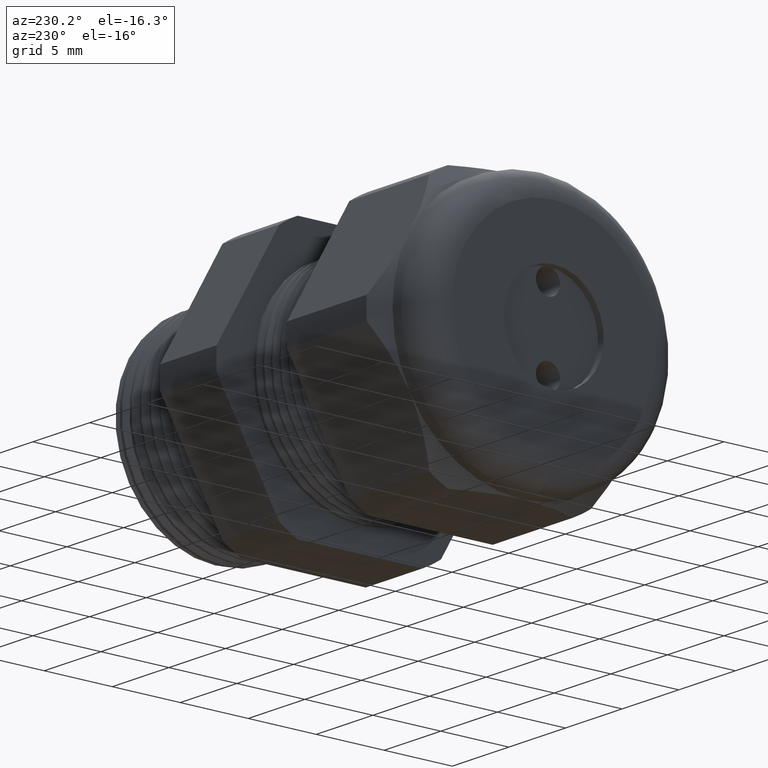
[diagram: clean part render]
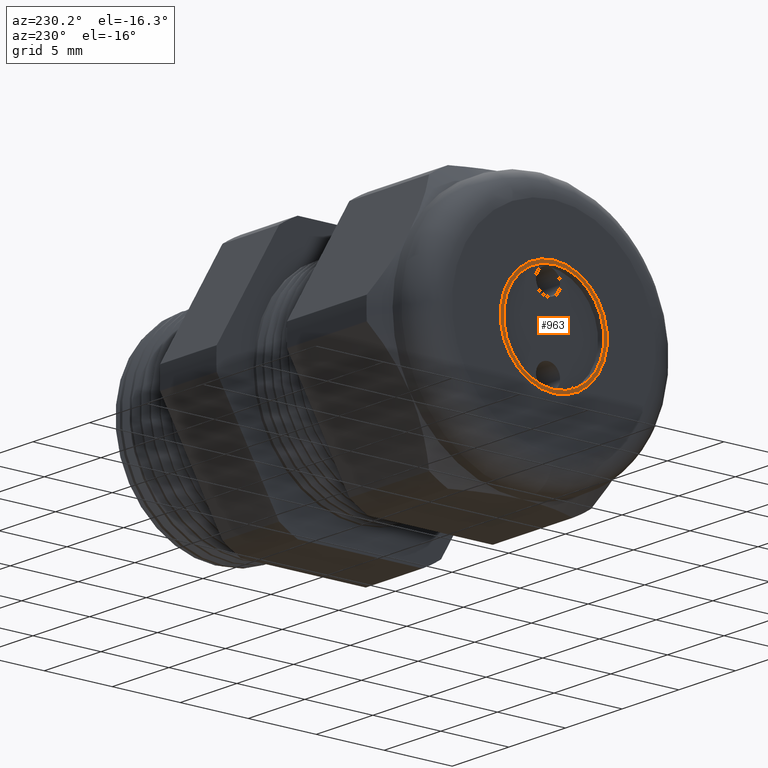
[diagram: same view with one face highlighted and labeled with its STEP entity id]
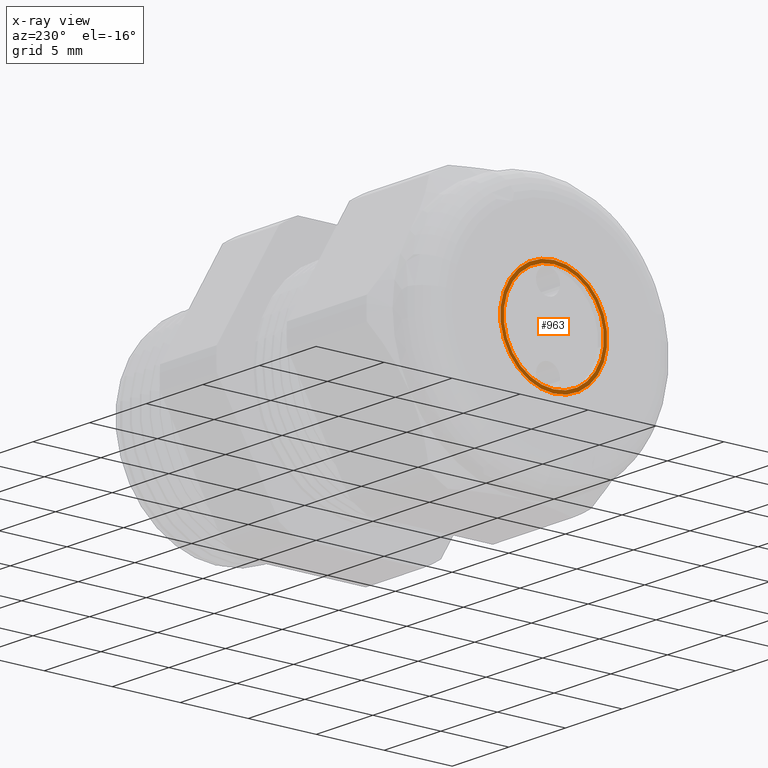
[diagram: x-ray of the same camera — body ghosted, the highlighted face saturated]
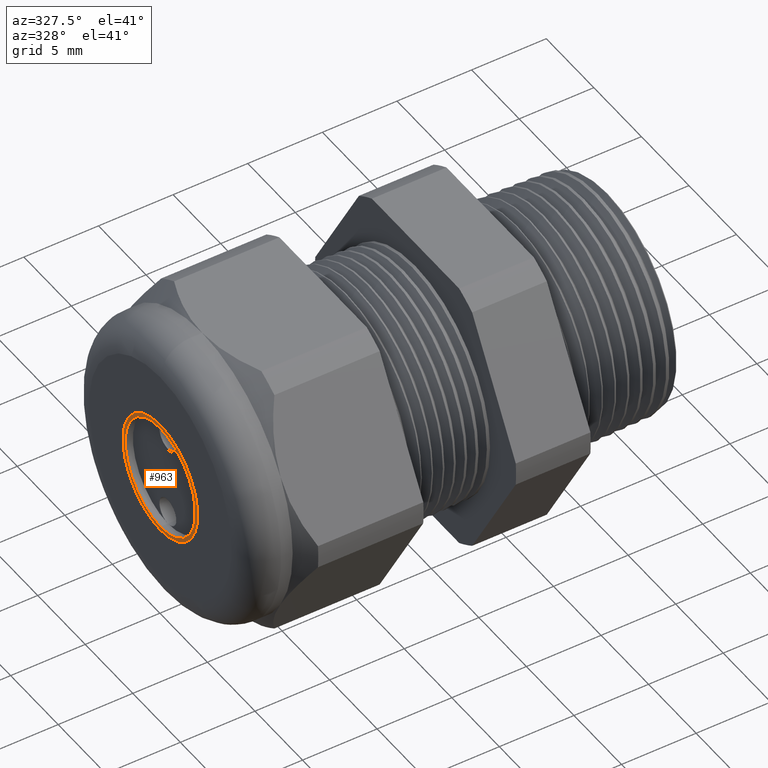
[diagram: same view with one face highlighted and labeled with its STEP entity id]
A machine part, auxiliary view. The second image highlights one B-rep face of the part: STEP entity #963.
The next image is the same camera in x-ray: the body ghosted, the highlighted face saturated — about 0% of this face is hidden behind the body in this view.
A second angle (auxiliary view) of the same face is appended — the face is thin or edge-on in the first view.
In plain terms, the highlighted planar face has unit normal (-1, 0, 0).
Its self-contained STEP definition (entity closure, byte-faithful):
#848 = EDGE_CURVE ( 'NONE', #862, #860, #2740, .T. ) ;
#860 = VERTEX_POINT ( 'NONE', #2769 ) ;
#862 = VERTEX_POINT ( 'NONE', #2768 ) ;
#901 = VERTEX_POINT ( 'NONE', #2881 ) ;
#904 = EDGE_CURVE ( 'NONE', #901, #910, #2876, .T. ) ;
#908 = EDGE_CURVE ( 'NONE', #910, #901, #2871, .T. ) ;
#910 = VERTEX_POINT ( 'NONE', #2866 ) ;
#949 = EDGE_CURVE ( 'NONE', #860, #862, #2931, .T. ) ;
#950 = ORIENTED_EDGE ( 'NONE', *, *, #904, .T. ) ;
#951 = ORIENTED_EDGE ( 'NONE', *, *, #848, .F. ) ;
#955 = ORIENTED_EDGE ( 'NONE', *, *, #949, .F. ) ;
#958 = EDGE_LOOP ( 'NONE', ( #950, #962 ) ) ;
#961 = EDGE_LOOP ( 'NONE', ( #955, #951 ) ) ;
#962 = ORIENTED_EDGE ( 'NONE', *, *, #908, .T. ) ;
#963 = ADVANCED_FACE ( 'NONE', ( #2980, #2979 ), #2978, .T. ) ;
#2732 = DIRECTION ( 'NONE',  ( 0.0000000000000000000, 0.0000000000000000000, 1.000000000000000000 ) ) ;
#2733 = DIRECTION ( 'NONE',  ( -1.000000000000000000, 0.0000000000000000000, 0.0000000000000000000 ) ) ;
#2734 = CARTESIAN_POINT ( 'NONE',  ( -1.179999999999999900, 0.0000000000000000000, 0.0000000000000000000 ) ) ;
#2735 = AXIS2_PLACEMENT_3D ( 'NONE', #2734, #2733, #2732 ) ;
#2740 = CIRCLE ( 'NONE', #2735, 0.1449999999999999900 ) ;
#2768 = CARTESIAN_POINT ( 'NONE',  ( -1.179999999999999900, 1.775737858763661900E-017, -0.1449999999999999900 ) ) ;
#2769 = CARTESIAN_POINT ( 'NONE',  ( -1.179999999999999900, 0.0000000000000000000, 0.1449999999999999900 ) ) ;
#2866 = CARTESIAN_POINT ( 'NONE',  ( -1.179999999999999900, 1.898202538678397000E-017, -0.1550000000000000000 ) ) ;
#2867 = DIRECTION ( 'NONE',  ( 0.0000000000000000000, 0.0000000000000000000, 1.000000000000000000 ) ) ;
#2868 = DIRECTION ( 'NONE',  ( -1.000000000000000000, 0.0000000000000000000, 0.0000000000000000000 ) ) ;
#2869 = CARTESIAN_POINT ( 'NONE',  ( -1.179999999999999900, 0.0000000000000000000, 0.0000000000000000000 ) ) ;
#2870 = AXIS2_PLACEMENT_3D ( 'NONE', #2869, #2868, #2867 ) ;
#2871 = CIRCLE ( 'NONE', #2870, 0.1550000000000000000 ) ;
#2872 = DIRECTION ( 'NONE',  ( 0.0000000000000000000, 0.0000000000000000000, 1.000000000000000000 ) ) ;
#2873 = DIRECTION ( 'NONE',  ( -1.000000000000000000, 0.0000000000000000000, 0.0000000000000000000 ) ) ;
#2874 = CARTESIAN_POINT ( 'NONE',  ( -1.179999999999999900, 0.0000000000000000000, 0.0000000000000000000 ) ) ;
#2875 = AXIS2_PLACEMENT_3D ( 'NONE', #2874, #2873, #2872 ) ;
#2876 = CIRCLE ( 'NONE', #2875, 0.1550000000000000000 ) ;
#2881 = CARTESIAN_POINT ( 'NONE',  ( -1.179999999999999900, 0.0000000000000000000, 0.1550000000000000000 ) ) ;
#2927 = DIRECTION ( 'NONE',  ( 0.0000000000000000000, 0.0000000000000000000, 1.000000000000000000 ) ) ;
#2928 = DIRECTION ( 'NONE',  ( -1.000000000000000000, 0.0000000000000000000, 0.0000000000000000000 ) ) ;
#2929 = CARTESIAN_POINT ( 'NONE',  ( -1.179999999999999900, 0.0000000000000000000, 0.0000000000000000000 ) ) ;
#2930 = AXIS2_PLACEMENT_3D ( 'NONE', #2929, #2928, #2927 ) ;
#2931 = CIRCLE ( 'NONE', #2930, 0.1449999999999999900 ) ;
#2974 = DIRECTION ( 'NONE',  ( 0.0000000000000000000, 0.0000000000000000000, 1.000000000000000000 ) ) ;
#2975 = DIRECTION ( 'NONE',  ( -1.000000000000000000, 0.0000000000000000000, 0.0000000000000000000 ) ) ;
#2976 = CARTESIAN_POINT ( 'NONE',  ( -1.179999999999999900, 0.0000000000000000000, 0.0000000000000000000 ) ) ;
#2977 = AXIS2_PLACEMENT_3D ( 'NONE', #2976, #2975, #2974 ) ;
#2978 = PLANE ( 'NONE',  #2977 ) ;
#2979 = FACE_OUTER_BOUND ( 'NONE', #958, .T. ) ;
#2980 = FACE_BOUND ( 'NONE', #961, .T. ) ;